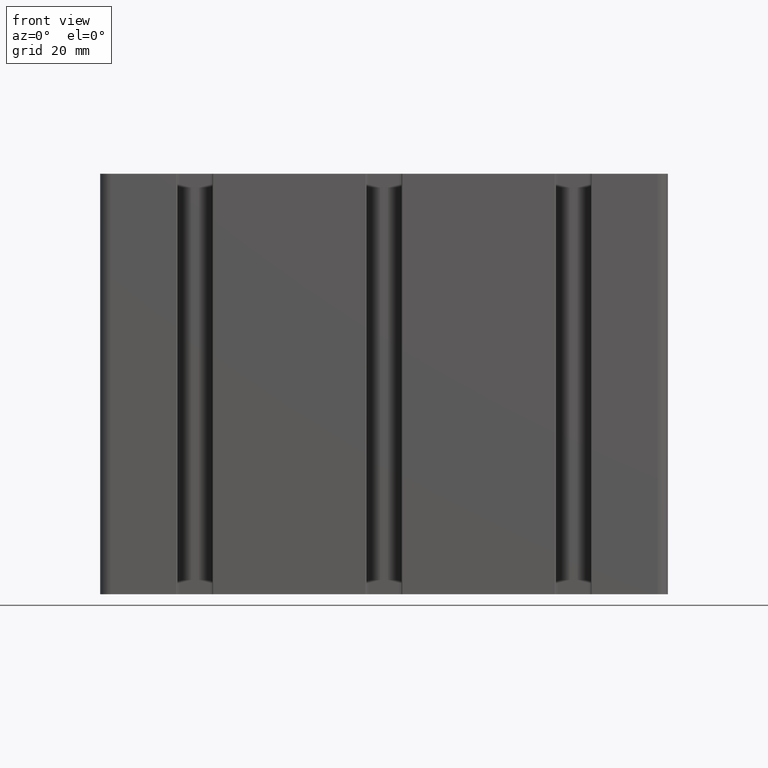
[diagram: clean part render]
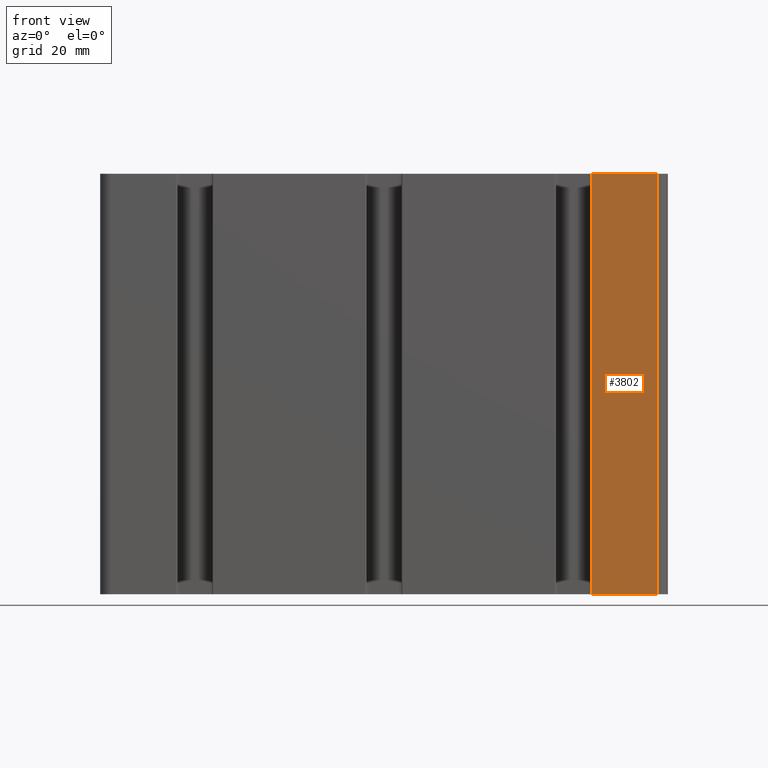
[diagram: same view with one face highlighted and labeled with its STEP entity id]
A machine part, front view. The second image highlights one B-rep face of the part: STEP entity #3802.
In plain terms, the highlighted planar face has unit normal (0, -1, 0).
Its self-contained STEP definition (entity closure, byte-faithful):
#445=FACE_OUTER_BOUND('',#637,.T.);
#637=EDGE_LOOP('',(#3086,#3087,#3088,#3089));
#866=LINE('',#5825,#1266);
#1043=LINE('',#6320,#1443);
#1044=LINE('',#6322,#1444);
#1045=LINE('',#6323,#1445);
#1266=VECTOR('',#4708,100.);
#1443=VECTOR('',#5187,15.549999999985);
#1444=VECTOR('',#5188,100.);
#1445=VECTOR('',#5189,15.549999999985);
#1663=VERTEX_POINT('',#5819);
#1665=VERTEX_POINT('',#5823);
#1832=VERTEX_POINT('',#6319);
#1833=VERTEX_POINT('',#6321);
#2122=EDGE_CURVE('',#1663,#1665,#866,.T.);
#2367=EDGE_CURVE('',#1832,#1665,#1043,.T.);
#2368=EDGE_CURVE('',#1832,#1833,#1044,.T.);
#2369=EDGE_CURVE('',#1833,#1663,#1045,.T.);
#3086=ORIENTED_EDGE('',*,*,#2122,.T.);
#3087=ORIENTED_EDGE('',*,*,#2367,.F.);
#3088=ORIENTED_EDGE('',*,*,#2368,.T.);
#3089=ORIENTED_EDGE('',*,*,#2369,.T.);
#3617=PLANE('',#4143);
#3802=ADVANCED_FACE('',(#445),#3617,.T.);
#4143=AXIS2_PLACEMENT_3D('',#6318,#5185,#5186);
#4708=DIRECTION('',(0.,0.,-1.));
#5185=DIRECTION('center_axis',(0.,-1.,0.));
#5186=DIRECTION('ref_axis',(1.,0.,0.));
#5187=DIRECTION('',(-1.,0.,0.));
#5188=DIRECTION('',(0.,0.,1.));
#5189=DIRECTION('',(-1.,0.,0.));
#5819=CARTESIAN_POINT('',(49.450000000015,-22.5,100.));
#5823=CARTESIAN_POINT('',(49.450000000015,-22.5,0.));
#5825=CARTESIAN_POINT('',(49.450000000015,-22.5,0.));
#6318=CARTESIAN_POINT('Origin',(-65.,-22.5,0.));
#6319=CARTESIAN_POINT('',(65.,-22.5,0.));
#6320=CARTESIAN_POINT('',(-32.5,-22.5,0.));
#6321=CARTESIAN_POINT('',(65.,-22.5,100.));
#6322=CARTESIAN_POINT('',(65.,-22.5,0.));
#6323=CARTESIAN_POINT('',(-32.5,-22.5,100.));